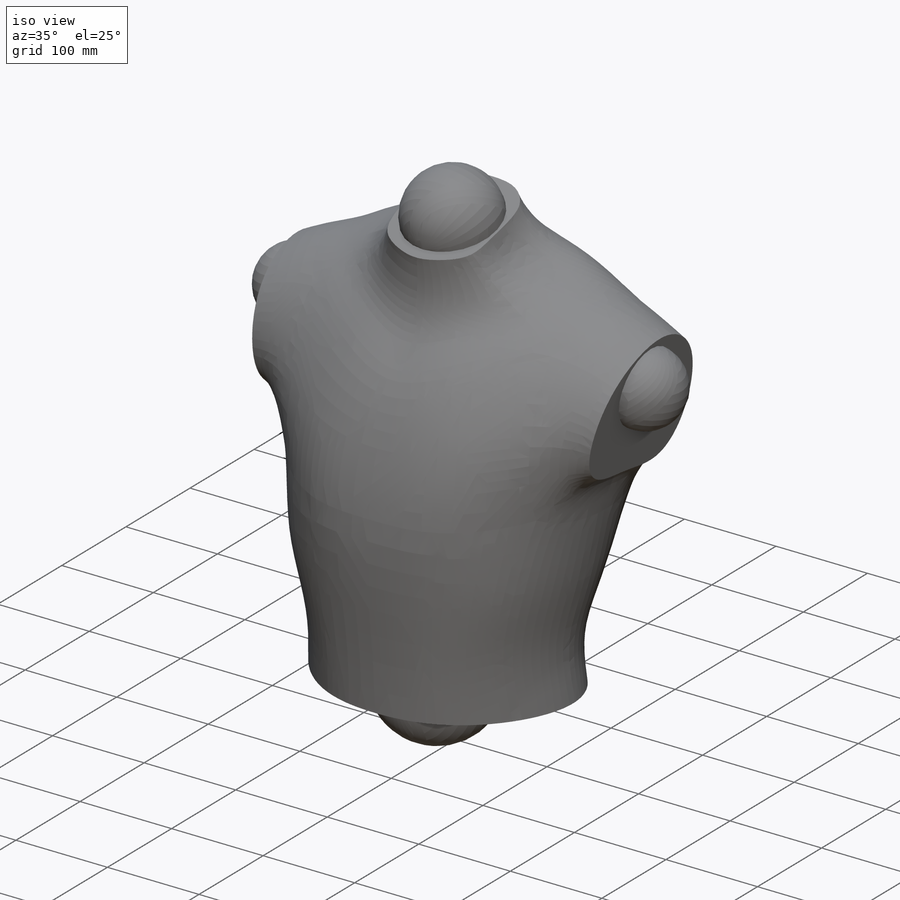
[diagram: iso view]
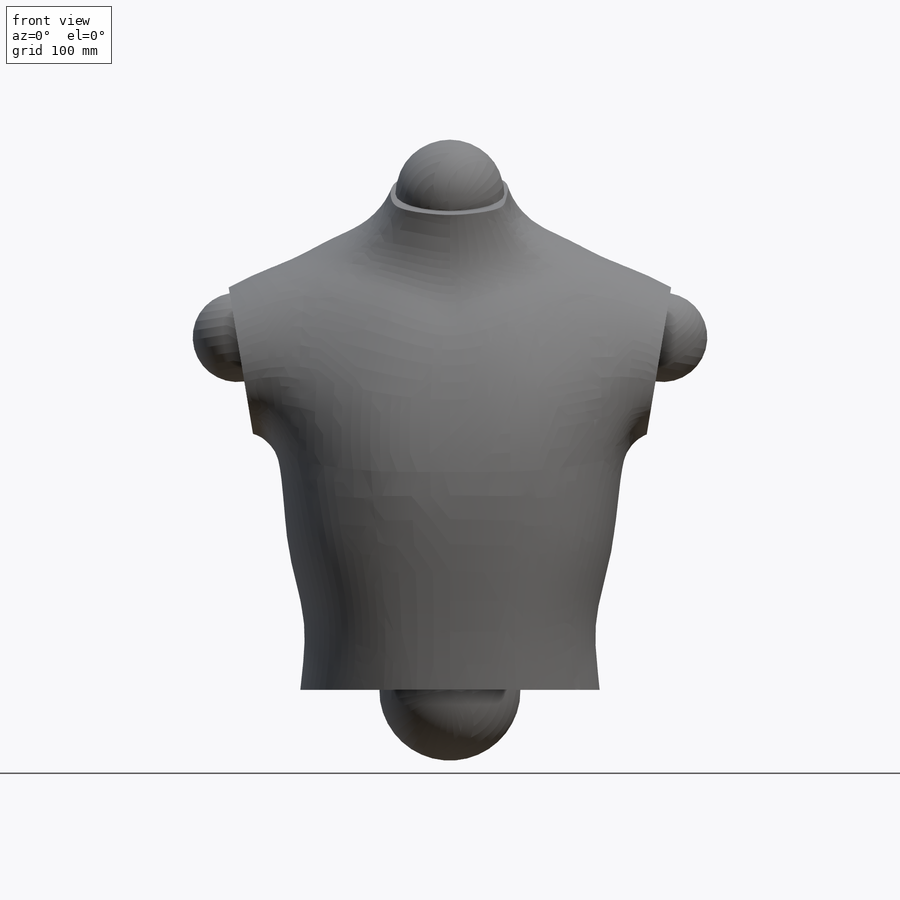
[diagram: front view]
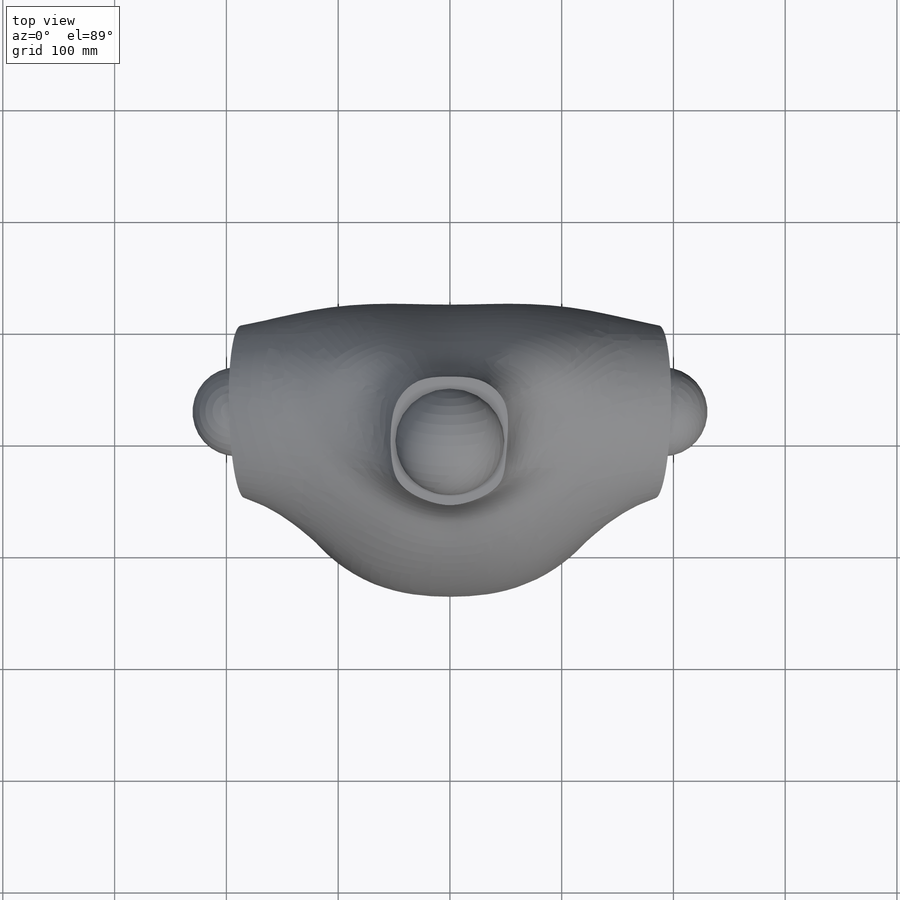
[diagram: top view]
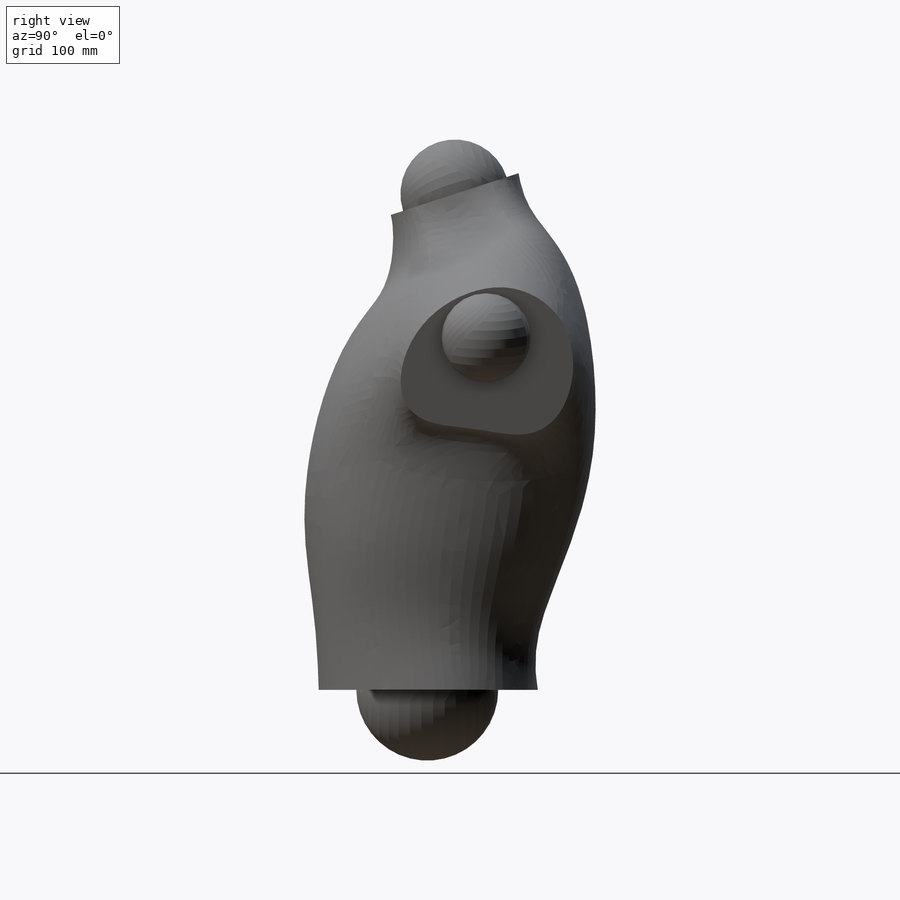
[diagram: right view]
SOLIDWORKS PART (.sldprt)
format: sldprt  version: not decoded by parser v0  size: 909,312 bytes
history: native  units: mm
features: sketch x4, revolve x4, material x1, plane x1 (+11 scaffold rows collapsed)
feature tree (21):
  scaffold x11  (default folders/planes/origin — collapsed)
  material  "Material <not specified>"
  plane  "Plane1"  Offset=76.2mm
  sketch  "Sketch1"  dims[D1=63.5mm]
  revolve  "Revolve1"  Angle=360deg
  sketch  "Sketch2"
  revolve  "Revolve2"  Angle=360deg
  sketch  "Sketch3"  dims[D1=80.01mm]
  revolve  "Revolve3"  Angle=360deg
  sketch  "Sketch4"  dims[D1=0.0mm]
  revolve  "Revolve4"  Angle=360deg
decode coverage: 7 of 8 modeling features carry decoded parameters
note: suppression state not decoded; provenance and decode notes live in map.json
